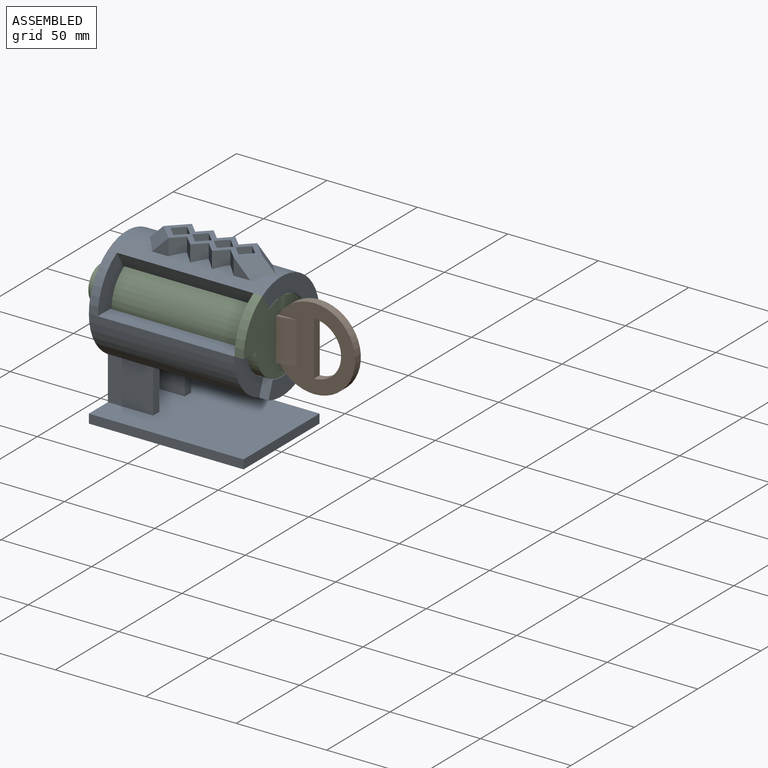
[diagram: assembled view]
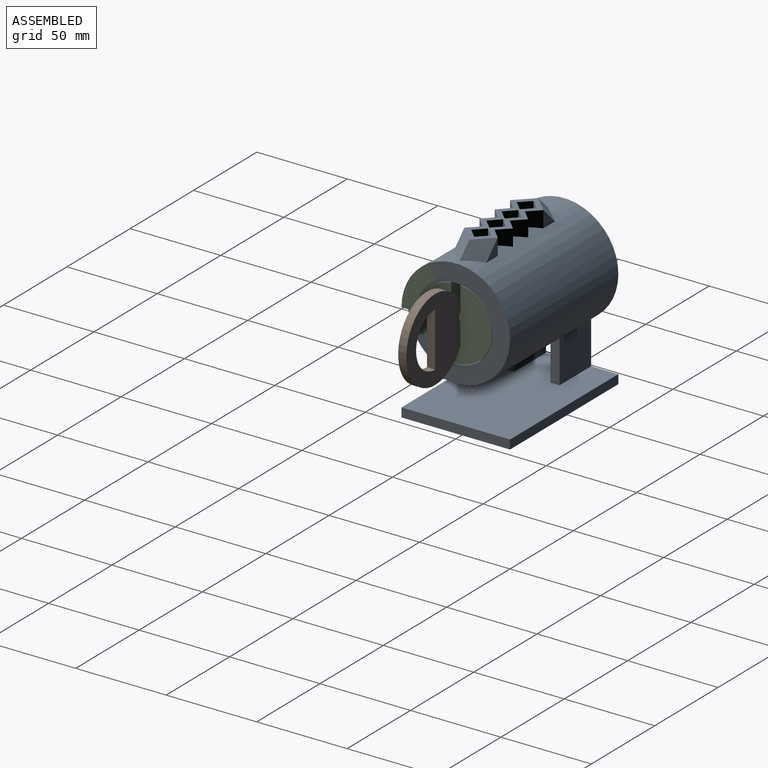
[diagram: assembled view, second angle]
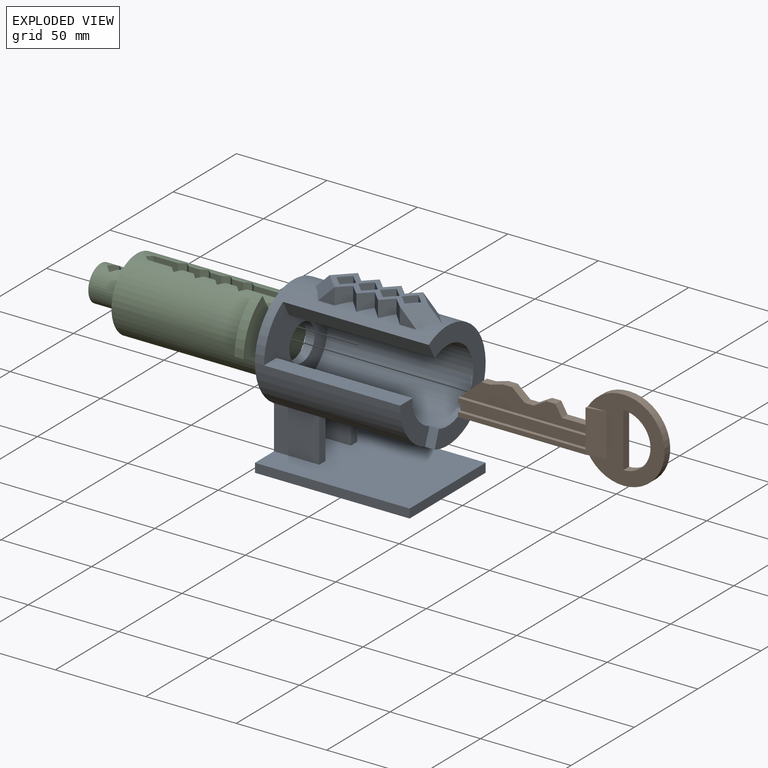
[diagram: exploded view]
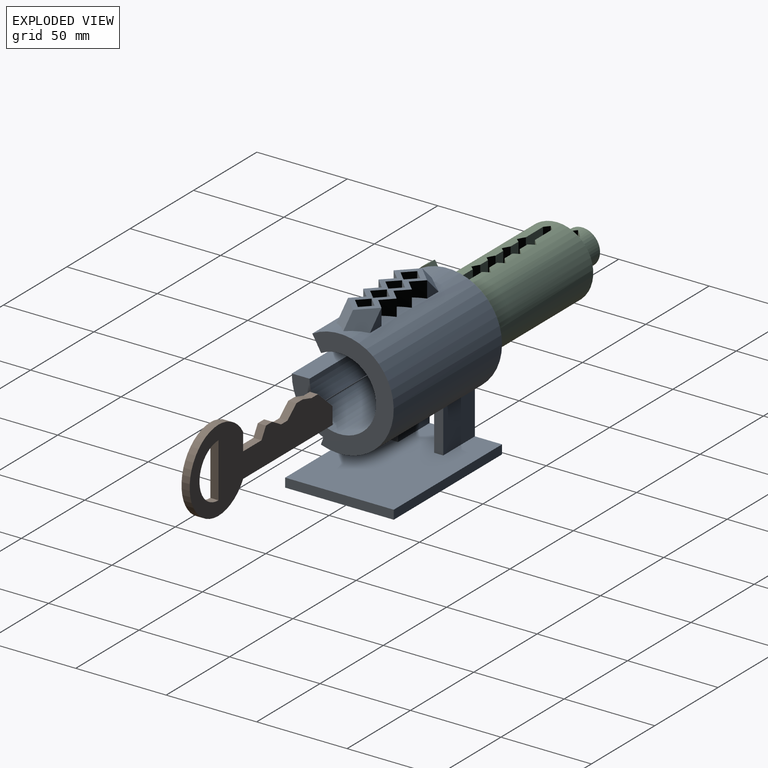
[diagram: exploded view, second angle]
ASSEMBLY  parts=3 mates=2
PART A: 58 faces, bbox 85.5x60x92.7 mm
  f0: plane 75.25x9.75mm, normal (0,0,1), area 733.7mm2, adj f1,f2,f23,f35
  f1: cylinder r=20.25mm len=80.5mm, axis (1,0,0), area 8168.6mm2, adj f0,f3,f4,f5,f6,f7,f8,f9
  f2: cylinder r=30mm len=85.5mm, axis (1,0,0), area 12185.8mm2, adj f0,f3,f4,f22,f23,f24,f25,f26
  f3: plane 80.5x8.44mm, normal (0,-0.87,-0.5), area 784.9mm2, adj f1,f2,f4,f23
  f4: plane 60x45mm, normal (1,0,0), area 983.4mm2, adj f1,f2,f3,f36
  f5: plane 18.19x5.42mm, normal (0.71,0.71,0), area 135.7mm2, adj f1,f6,f8,f53
  f6: plane 18.19x5.42mm, normal (-0.71,0.71,0), area 135.7mm2, adj f1,f5,f7,f53
  f7: plane 18.19x5.42mm, normal (-0.71,-0.71,0), area 135.7mm2, adj f1,f6,f8,f53
  f8: plane 18.19x5.42mm, normal (0.71,-0.71,0), area 135.7mm2, adj f1,f5,f7,f53
  f9: plane 18.19x5.42mm, normal (0.71,0.71,0), area 135.7mm2, adj f1,f10,f12,f53
  f10: plane 18.19x5.42mm, normal (-0.71,0.71,0), area 135.7mm2, adj f1,f9,f11,f53
  f11: plane 18.19x5.42mm, normal (-0.71,-0.71,0), area 135.7mm2, adj f1,f10,f12,f53
  f12: plane 18.19x5.42mm, normal (0.71,-0.71,0), area 135.7mm2, adj f1,f9,f11,f53
  f13: plane 18.19x5.42mm, normal (-0.71,-0.71,0), area 135.7mm2, adj f1,f14,f16,f53
  f14: plane 18.19x5.42mm, normal (0.71,-0.71,0), area 135.7mm2, adj f1,f13,f15,f53
  f15: plane 18.19x5.42mm, normal (0.71,0.71,0), area 135.7mm2, adj f1,f14,f16,f53
  f16: plane 18.19x5.42mm, normal (-0.71,0.71,0), area 135.7mm2, adj f1,f13,f15,f53
  f17: plane 18.19x5.42mm, normal (-0.71,-0.71,0), area 135.7mm2, adj f1,f18,f20,f53
  f18: plane 18.19x5.42mm, normal (0.71,-0.71,0), area 135.7mm2, adj f1,f17,f19,f53
  f19: plane 18.19x5.42mm, normal (0.71,0.71,0), area 135.7mm2, adj f1,f18,f20,f53
  f20: plane 18.19x5.42mm, normal (-0.71,0.71,0), area 135.7mm2, adj f1,f17,f19,f53
  f21: cylinder r=10mm len=20mm, axis (1,0,0), area 314.2mm2, adj f22,f23
  f22: plane 85x60mm, normal (-1,0,0), area 3041mm2, adj f2,f21,f24,f25,f27,f28,f30,f32
  f23: plane 50.25x46.23mm, normal (1,0,0), area 1230.6mm2, adj f0,f1,f2,f3,f21
  f24: plane 25x21.72mm, normal (0,1,0), area 542.9mm2, adj f2,f22,f26,f30
  f25: plane 25x24.02mm, normal (0,-1,0), area 600.5mm2, adj f2,f22,f26,f30
  f26: plane 24.02x5mm, normal (1,0,0), area 113.9mm2, adj f2,f24,f25,f30
  f27: plane 25x21.72mm, normal (0,-1,0), area 542.9mm2, adj f2,f22,f29,f30
  f28: plane 25x24.02mm, normal (0,1,0), area 600.5mm2, adj f2,f22,f29,f30
  f29: plane 24.02x5mm, normal (1,0,0), area 113.9mm2, adj f2,f27,f28,f30
  f30: plane 85.5x60mm, normal (0,0,1), area 4880mm2, adj f22,f24,f25,f26,f27,f28,f29,f31
  f31: plane 60x5mm, normal (1,0,0), area 300mm2, adj f30,f32,f33,f34
  f32: plane 85.5x5mm, normal (0,1,0), area 427.5mm2, adj f22,f30,f31,f33
  f33: plane 85.5x60mm, normal (0,0,-1), area 5130mm2, adj f22,f31,f32,f34
  f34: plane 85.5x5mm, normal (0,-1,0), area 427.5mm2, adj f22,f30,f31,f33
  f35: plane 28.19x23.07mm, normal (1,0,0), area 299.3mm2, adj f0,f1,f2,f36
  f36: plane 9.16x5.25mm, normal (0,-0.94,0.34), area 51.2mm2, adj f1,f2,f4,f35
  f37: plane 9.16x9.16mm, normal (0,1,0), area 41.9mm2, adj f2,f38,f43
  f38: plane 16.94x9.24mm, normal (0.58,0.58,0.58), area 131mm2, adj f2,f37,f40,f53
  f39: plane 9.16x9.16mm, normal (0,-1,0), area 41.9mm2, adj f2,f40,f42
  f40: plane 16.94x9.24mm, normal (0.58,-0.58,0.58), area 131mm2, adj f2,f38,f39,f53
  f41: plane 9.16x6mm, normal (0.71,-0.71,0), area 71.4mm2, adj f2,f42,f52,f53
  f42: plane 9.16x6mm, normal (-0.71,-0.71,0), area 71.4mm2, adj f2,f39,f41,f53
  f43: plane 9.16x6mm, normal (-0.71,0.71,0), area 71.4mm2, adj f2,f37,f44,f53
  f44: plane 9.16x6mm, normal (0.71,0.71,0), area 71.4mm2, adj f2,f43,f45,f53
  f45: plane 9.16x6mm, normal (-0.71,0.71,0), area 71.4mm2, adj f2,f44,f46,f53
  f46: plane 9.16x6mm, normal (0.71,0.71,0), area 71.4mm2, adj f2,f45,f47,f53
  f47: plane 9.16x6mm, normal (-0.71,0.71,0), area 71.4mm2, adj f2,f46,f48,f53
  f48: plane 9.16x6mm, normal (0.71,0.71,0), area 71.4mm2, adj f2,f47,f53,f54
  f49: plane 9.16x6mm, normal (0.71,-0.71,0), area 71.4mm2, adj f2,f50,f53,f56
  f50: plane 9.16x6mm, normal (-0.71,-0.71,0), area 71.4mm2, adj f2,f49,f51,f53
  f51: plane 9.16x6mm, normal (0.71,-0.71,0), area 71.4mm2, adj f2,f50,f52,f53
  f52: plane 9.16x6mm, normal (-0.71,-0.71,0), area 71.4mm2, adj f2,f41,f51,f53
  f53: plane 54.49x18.49mm, normal (0,0,1), area 384.9mm2, adj f5,f6,f7,f8,f9,f10,f11,f12
  f54: plane 9.16x9.16mm, normal (0,1,0), area 41.9mm2, adj f2,f48,f55
  f55: plane 16.94x9.24mm, normal (-0.58,0.58,0.58), area 131mm2, adj f2,f53,f54,f57
  f56: plane 9.16x9.16mm, normal (0,-1,0), area 41.9mm2, adj f2,f49,f57
  f57: plane 16.94x9.24mm, normal (-0.58,-0.58,0.58), area 131mm2, adj f2,f53,f55,f56
PART B: 28 faces, bbox 112.8x6.5x45.5 mm
  f0: plane 70.5x4.5mm, normal (0,-1,0), area 317.2mm2, adj f3,f8,f9,f25
  f1: plane 70.5x12.25mm, normal (0,-1,0), area 542.2mm2, adj f5,f6,f12,f13,f14,f15,f16,f17
  f2: plane 45.53x42.27mm, normal (0,-1,0), area 987.9mm2, adj f11,f22,f23,f24,f26,f27
  f3: plane 9.5x6.5mm, normal (-1,0,0), area 52.8mm2, adj f0,f4,f6,f7,f8,f9,f10,f11
  f4: plane 112.77x45.53mm, normal (0,1,0), area 2434.9mm2, adj f3,f5,f11,f12,f13,f14,f15,f16
  f5: plane 14.5x4.5mm, normal (0,0,1), area 65.2mm2, adj f1,f4,f12,f21
  f6: plane 70.5x2mm, normal (0,0,1), area 141mm2, adj f1,f3,f7,f21
  f7: plane 70.5x2.5mm, normal (0,-1,0), area 176.3mm2, adj f3,f6,f8,f26
  f8: plane 70.5x2mm, normal (0,0,-1), area 141mm2, adj f0,f3,f7,f25
  f9: plane 70.5x2mm, normal (0,0,1), area 141mm2, adj f0,f3,f10,f25
  f10: plane 70.5x2.5mm, normal (0,-1,0), area 176.3mm2, adj f3,f9,f11,f26
  f11: plane 80.5x6.5mm, normal (0,0,-1), area 468.2mm2, adj f2,f3,f4,f10,f22,f26
  f12: plane 6x4.5mm, normal (0.86,0,0.5), area 31.3mm2, adj f1,f4,f5,f13
  f13: plane 5x4.5mm, normal (0,0,1), area 22.5mm2, adj f1,f4,f12,f14
  f14: plane 7x4.5mm, normal (-0.5,0,0.87), area 36.3mm2, adj f1,f4,f13,f15
  f15: plane 5x4.5mm, normal (0,0,1), area 22.5mm2, adj f1,f4,f14,f16
  f16: plane 7x6mm, normal (0.65,0,0.76), area 41.5mm2, adj f1,f4,f15,f17
  f17: plane 5x4.5mm, normal (0,0,1), area 22.5mm2, adj f1,f4,f16,f18
  f18: plane 7x4.5mm, normal (-0.27,0,0.96), area 32.8mm2, adj f1,f4,f17,f19
  f19: plane 5x4.5mm, normal (0,0,1), area 22.5mm2, adj f1,f4,f18,f20
  f20: plane 11.5x10.25mm, normal (-0.67,0,0.75), area 69.3mm2, adj f1,f3,f4,f19
  f21: plane 14x6.5mm, normal (-1,0,0), area 71.9mm2, adj f1,f4,f5,f6,f22,f26,f27
  f22: cylinder r=22.77mm len=45.53mm, axis (0,1,0), area 532.6mm2, adj f2,f4,f11,f21
  f23: cylinder r=15mm len=30mm, axis (0,1,0), area 212.1mm2, adj f2,f4,f24
  f24: plane 30x4.5mm, normal (1,0,0), area 135mm2, adj f2,f4,f23
  f25: plane 4.5x2mm, normal (-1,0,0), area 9mm2, adj f0,f8,f9,f26
  f26: plane 23.5x10mm, normal (0.2,-0.98,0), area 239.7mm2, adj f2,f7,f10,f11,f21,f25,f27
  f27: plane 10x2mm, normal (0,0,1), area 10mm2, adj f2,f21,f26
PART C: 48 faces, bbox 100x50x46 mm
  f0: cylinder r=20mm len=80mm, axis (1,0,0), area 9509.1mm2, adj f1,f2,f10,f19,f20,f21,f22,f23
  f1: plane 72.5x31.84mm, normal (0,-1,0), area 1891.2mm2, adj f0,f3,f10,f11,f13,f15,f17,f27
  f2: plane 72.5x21.84mm, normal (0,1,0), area 1166.2mm2, adj f0,f9,f10,f12,f14,f16,f18,f19
  f3: plane 75x7mm, normal (0,0,1), area 511.7mm2, adj f1,f4,f10,f36,f37
  f4: plane 70.5x3mm, normal (0,1,0), area 211.5mm2, adj f3,f5,f10,f36
  f5: plane 72.5x2mm, normal (0,0,-1), area 143mm2, adj f4,f6,f10,f36
  f6: plane 72.5x4mm, normal (0,1,0), area 290mm2, adj f5,f7,f10,f36
  f7: plane 72.5x2mm, normal (0,0,1), area 143mm2, adj f6,f8,f10,f36
  f8: plane 70.5x3mm, normal (0,1,0), area 211.5mm2, adj f7,f9,f10,f36
  f9: plane 72.5x2mm, normal (0,0,-1), area 143mm2, adj f2,f8,f10,f36
  f10: plane 50x45.98mm, normal (1,0,0), area 1346.7mm2, adj f0,f1,f2,f3,f4,f5,f6,f7
  f11: plane 5.85x2.92mm, normal (0,0,1), area 8.6mm2, adj f1,f27,f28
  f12: plane 5.85x2.92mm, normal (0,0,1), area 8.6mm2, adj f2,f19,f20
  f13: plane 5.85x2.92mm, normal (0,0,1), area 8.6mm2, adj f1,f29,f30
  f14: plane 5.85x2.92mm, normal (0,0,1), area 8.6mm2, adj f2,f21,f22
  f15: plane 5.85x2.92mm, normal (0,0,1), area 8.6mm2, adj f1,f31,f32
  f16: plane 5.85x2.92mm, normal (0,0,1), area 8.6mm2, adj f2,f23,f24
  f17: plane 5.85x2.92mm, normal (0,0,1), area 8.6mm2, adj f1,f33,f34
  f18: plane 5.85x2.92mm, normal (0,0,1), area 8.6mm2, adj f2,f25,f26
  f19: plane 17.84x2.92mm, normal (-0.71,0.71,0), area 72.7mm2, adj f0,f2,f12,f20
  f20: plane 17.84x2.92mm, normal (0.71,0.71,0), area 72.7mm2, adj f0,f2,f12,f19
  f21: plane 17.84x2.92mm, normal (-0.71,0.71,0), area 72.7mm2, adj f0,f2,f14,f22
  f22: plane 17.84x2.92mm, normal (0.71,0.71,0), area 72.7mm2, adj f0,f2,f14,f21
  f23: plane 17.84x2.92mm, normal (-0.71,0.71,0), area 72.7mm2, adj f0,f2,f16,f24
  f24: plane 17.84x2.92mm, normal (0.71,0.71,0), area 72.7mm2, adj f0,f2,f16,f23
  f25: plane 17.84x2.92mm, normal (-0.71,0.71,0), area 72.7mm2, adj f0,f2,f18,f26
  f26: plane 17.84x2.92mm, normal (0.71,0.71,0), area 72.7mm2, adj f0,f2,f18,f25
  f27: plane 17.84x2.92mm, normal (-0.71,-0.71,0), area 72.7mm2, adj f0,f1,f11,f28
  f28: plane 17.84x2.92mm, normal (0.71,-0.71,0), area 72.7mm2, adj f0,f1,f11,f27
  f29: plane 17.84x2.92mm, normal (-0.71,-0.71,0), area 72.7mm2, adj f0,f1,f13,f30
  f30: plane 17.84x2.92mm, normal (0.71,-0.71,0), area 72.7mm2, adj f0,f1,f13,f29
  f31: plane 17.84x2.92mm, normal (-0.71,-0.71,0), area 72.7mm2, adj f0,f1,f15,f32
  f32: plane 17.84x2.92mm, normal (0.71,-0.71,0), area 72.7mm2, adj f0,f1,f15,f31
  f33: plane 17.84x2.92mm, normal (-0.71,-0.71,0), area 72.7mm2, adj f0,f1,f17,f34
  f34: plane 17.84x2.92mm, normal (0.71,-0.71,0), area 72.7mm2, adj f0,f1,f17,f33
  f35: plane 40x40mm, normal (-1,0,0), area 958mm2, adj f0,f38
  f36: plane 32.01x4.51mm, normal (0.71,0.71,0), area 129.9mm2, adj f0,f2,f3,f4,f5,f6,f7,f8
  f37: plane 32.01x2.51mm, normal (0.71,-0.71,0), area 113mm2, adj f0,f1,f3,f36
  f38: cylinder r=9.75mm len=20mm, axis (1,0,0), area 1160.3mm2, adj f35,f39,f40,f41,f42,f43
  f39: plane 19.5x19.5mm, normal (-1,0,0), area 298.6mm2, adj f38
  f40: plane 19.5x4mm, normal (0.71,-0.71,0), area 107.1mm2, adj f38,f41,f43
  f41: plane 19.5x4mm, normal (0.71,0.71,0), area 107.1mm2, adj f38,f40,f42
  f42: plane 19.5x4mm, normal (-0.71,0.71,0), area 107.1mm2, adj f38,f41,f43
  f43: plane 19.5x4mm, normal (-0.71,-0.71,0), area 107.1mm2, adj f38,f40,f42
  f44: plane 10x5mm, normal (0,0,-1), area 50mm2, adj f0,f10,f46,f47
  f45: plane 8.66x5mm, normal (0,0.87,0.5), area 50mm2, adj f0,f10,f46,f47
  f46: cylinder r=30mm len=25.98mm, axis (1,0,0), area 157.1mm2, adj f10,f44,f45,f47
  f47: plane 25.98x20mm, normal (-1,0,0), area 261.8mm2, adj f0,f44,f45,f46
PLACE A at identity fixed
PLACE B rot(axis=(-1,0,0),0deg) t=(-0.5,0,0)mm
PLACE C rot(axis=(-1,0,0),0deg) t=(0,0,0)mm
MATE revolute C.f38 <-> A.f21  axis (-1,0,0) through (-100,0,0)mm
MATE fastened C.f10 <-> B.f21  axis (1,0,0) through (0,-4.25,-2.25)mm
